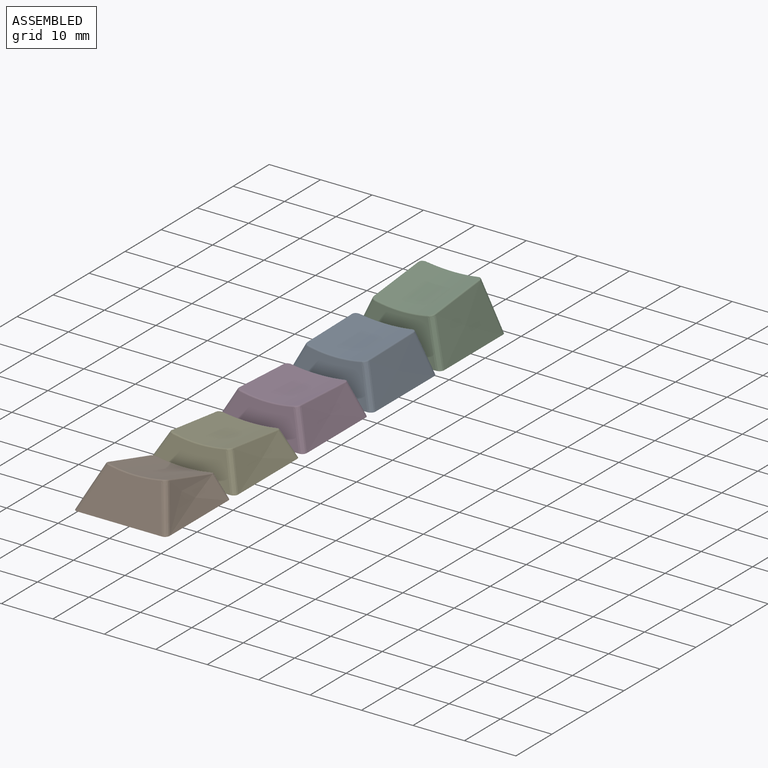
[diagram: assembled view]
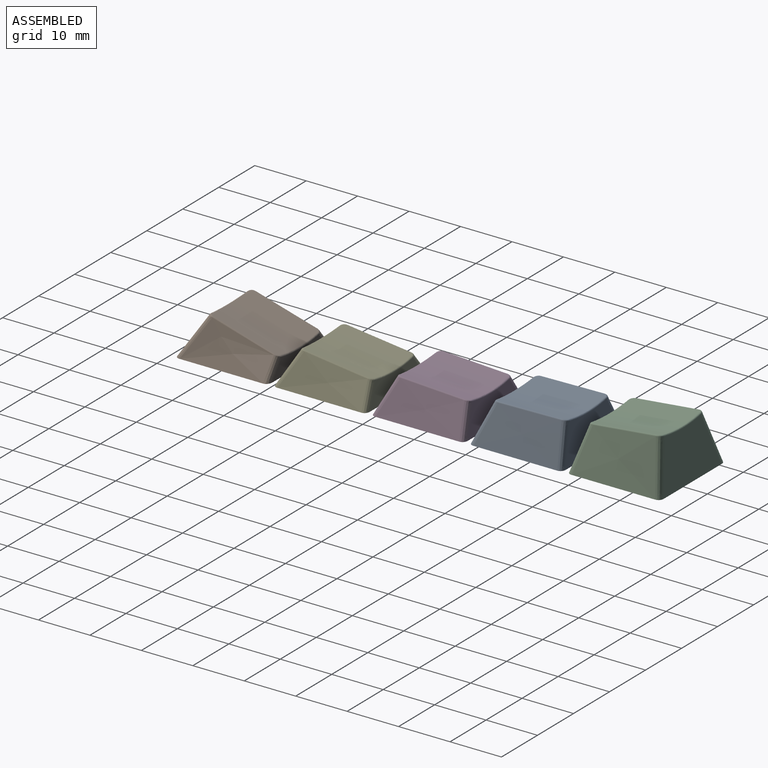
[diagram: assembled view, second angle]
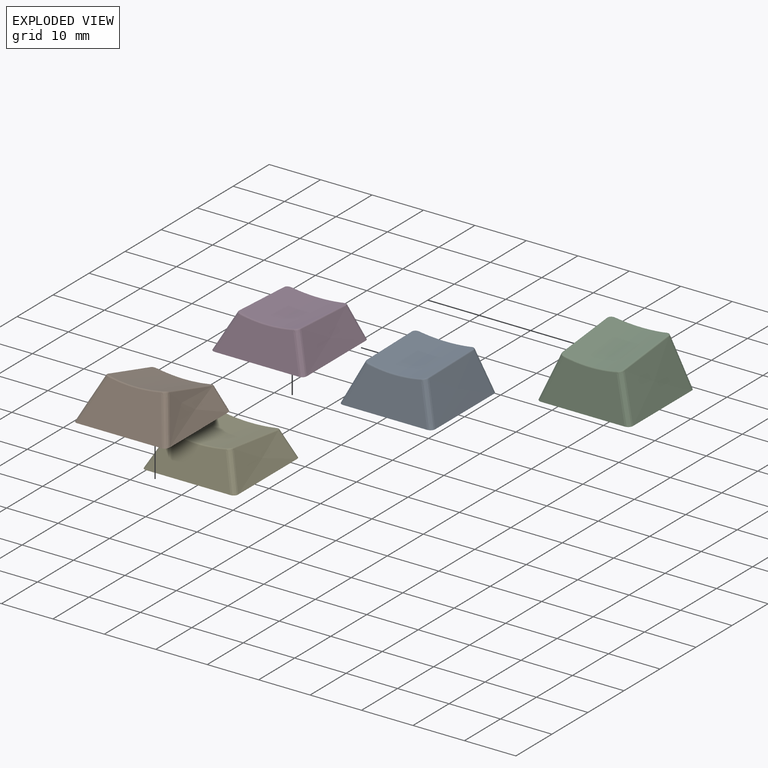
[diagram: exploded view]
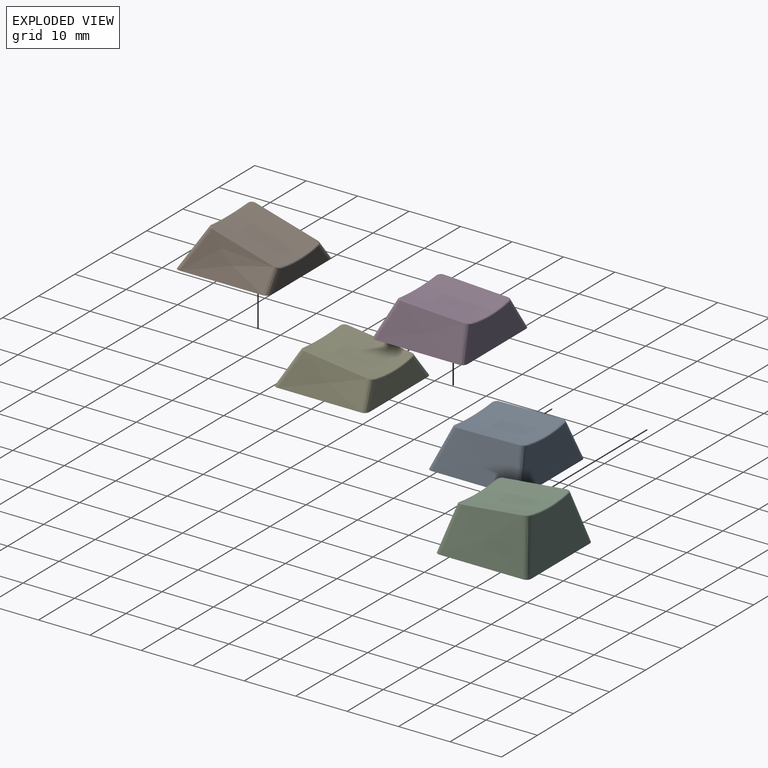
[diagram: exploded view, second angle]
ASSEMBLY  parts=5 mates=3
PART A: 51 faces, bbox 22x21.3x14.2 mm
  f0: plane 6x6mm, normal (0,0,-1), area 19.2mm2, adj f28,f29,f30,f31,f32,f33,f34,f35
  f1: plane 18.44x18.44mm, normal (0,0,-1), area 54.6mm2, adj f2,f3,f4,f5,f7,f8,f9,f10
  f2: plane 16.14x7.16mm, normal (0,0.98,0.17), area 92.8mm2, adj f1,f9,f10,f15
  f3: bspline ~18.16x7.54mm, area 112.1mm2, adj f1,f8,f9,f11
  f4: plane 16.28x6.97mm, normal (0,-0.94,0.35), area 95.6mm2, adj f1,f7,f8,f14
  f5: bspline ~18.16x7.54mm, area 112.1mm2, adj f1,f7,f10,f18
  f6: cylinder r=30mm len=13.86mm, axis (0,1,0.02), area 159.8mm2, adj f11,f12,f13,f14,f15,f16,f17,f18
  f7: bspline ~12.47x6.1mm, area 11.6mm2, adj f1,f4,f5,f16
  f8: bspline ~12.47x6.1mm, area 11.6mm2, adj f1,f3,f4,f12
  f9: bspline ~9.26x4.61mm, area 12mm2, adj f1,f2,f3,f13
  f10: bspline ~9.26x4.61mm, area 12mm2, adj f1,f2,f5,f17
  f11: bspline ~17.96x0.5mm, area 4.2mm2, adj f3,f6,f12,f13
  f12: bspline ~1.12x1.04mm, area 0.4mm2, adj f6,f8,f11,f14
  f13: bspline ~1.21x1.03mm, area 0.5mm2, adj f6,f9,f11,f15
  f14: bspline ~10.34x0.61mm, area 3.1mm2, adj f4,f6,f12,f16
  f15: bspline ~10.21x0.64mm, area 3.6mm2, adj f2,f6,f13,f17
  f16: bspline ~1.22x0.97mm, area 0.4mm2, adj f6,f7,f14,f18
  f17: bspline ~1.2x1.05mm, area 0.5mm2, adj f6,f10,f15,f18
  f18: bspline ~15.87x0.46mm, area 4.2mm2, adj f5,f6,f16,f17
  f19: plane 16.03x6.43mm, normal (0,-0.98,-0.17), area 83.9mm2, adj f1,f26,f27,f48
  f20: offset ~19.66x9.04mm, area 99.4mm2, adj f1,f25,f26,f49
  f21: plane 16.06x6.25mm, normal (0,0.94,-0.35), area 85.7mm2, adj f1,f24,f25,f45
  f22: offset ~19.66x9.04mm, area 99.4mm2, adj f1,f24,f27,f44
  f23: cylinder r=30.75mm len=12.69mm, axis (0,1,0.02), area 96mm2, adj f42,f44,f45,f48,f49
  f24: bspline ~10.42x4.64mm, area 2.6mm2, adj f1,f21,f22,f43
  f25: bspline ~10.42x4.64mm, area 2.6mm2, adj f1,f20,f21,f47
  f26: bspline ~9x3.92mm, area 2.7mm2, adj f1,f19,f20,f50
  f27: bspline ~9x3.92mm, area 2.7mm2, adj f1,f19,f22,f46
  f28: cone r=3mm half-angle=3deg, axis (0,0,1), area 119.6mm2, adj f0,f42
  f29: plane 3.65x1.68mm, normal (-1,0,0), area 6.1mm2, adj f0,f30,f40,f41
  f30: plane 3.65x1.15mm, normal (0,1,0), area 4.2mm2, adj f0,f29,f31,f41
  f31: plane 3.65x1.68mm, normal (1,0,0), area 6.1mm2, adj f0,f30,f32,f41
  f32: plane 3.65x1.68mm, normal (0,1,0), area 6.1mm2, adj f0,f31,f33,f41
  f33: plane 3.65x1.15mm, normal (1,0,0), area 4.2mm2, adj f0,f32,f34,f41
  f34: plane 3.65x1.68mm, normal (0,-1,0), area 6.1mm2, adj f0,f33,f35,f41
  f35: plane 3.65x1.68mm, normal (1,0,0), area 6.1mm2, adj f0,f34,f36,f41
  f36: plane 3.65x1.15mm, normal (0,-1,0), area 4.2mm2, adj f0,f35,f37,f41
  f37: plane 3.65x1.68mm, normal (-1,0,0), area 6.1mm2, adj f0,f36,f38,f41
  f38: plane 3.65x1.68mm, normal (0,-1,0), area 6.1mm2, adj f0,f37,f39,f41
  f39: plane 3.65x1.15mm, normal (-1,0,0), area 4.2mm2, adj f0,f38,f40,f41
  f40: plane 3.65x1.68mm, normal (0,1,0), area 6.1mm2, adj f0,f29,f39,f41
  f41: plane 4.5x4.5mm, normal (0,0,-1), area 9mm2, adj f29,f30,f31,f32,f33,f34,f35,f36
  f42: bspline ~7.12x7.08mm, area 7.8mm2, adj f23,f28
  f43: sphere r=0.25mm, area 0.1mm2, adj f24,f44,f45
  f44: bspline ~16.17x0.46mm, area 4.3mm2, adj f22,f23,f43,f46
  f45: bspline ~10.73x0.63mm, area 3.2mm2, adj f21,f23,f43,f47
  f46: sphere r=0.25mm, area 0.1mm2, adj f27,f44,f48
  f47: sphere r=0.25mm, area 0.1mm2, adj f25,f45,f49
  f48: bspline ~10.71x0.67mm, area 3.8mm2, adj f19,f23,f46,f50
  f49: bspline ~18.27x0.5mm, area 4.3mm2, adj f20,f23,f47,f50
  f50: sphere r=0.25mm, area 0.1mm2, adj f26,f48,f49
PART B: 51 faces, bbox 20.9x22.6x12.5 mm
  f0: plane 6x6mm, normal (0,0,-1), area 19.2mm2, adj f28,f29,f30,f31,f32,f33,f34,f35
  f1: plane 18.48x18.48mm, normal (0,0,-1), area 57.1mm2, adj f2,f3,f4,f5,f7,f8,f9,f10
  f2: plane 15.69x3.41mm, normal (0,1,0.05), area 41.2mm2, adj f1,f9,f10,f15
  f3: bspline ~18.16x7.65mm, area 92.6mm2, adj f1,f8,f9,f11
  f4: plane 16.41x7.33mm, normal (0,-0.87,0.5), area 109.6mm2, adj f1,f7,f8,f14
  f5: bspline ~18.16x7.65mm, area 92.6mm2, adj f1,f7,f10,f18
  f6: cylinder r=30mm len=13.48mm, axis (0,0.96,-0.28), area 160.6mm2, adj f11,f12,f13,f14,f15,f16,f17,f18
  f7: bspline ~9.54x6.23mm, area 12.8mm2, adj f1,f4,f5,f16
  f8: bspline ~10.69x6.9mm, area 12.8mm2, adj f1,f3,f4,f12
  f9: bspline ~6.19x5.16mm, area 6.7mm2, adj f1,f2,f3,f13
  f10: bspline ~6.1x5.09mm, area 6.7mm2, adj f1,f2,f5,f17
  f11: bspline ~18.08x5.25mm, area 4mm2, adj f3,f6,f12,f13
  f12: bspline ~1.17x1.1mm, area 0.4mm2, adj f6,f8,f11,f14
  f13: bspline ~1.06x0.98mm, area 0.3mm2, adj f6,f9,f11,f15
  f14: bspline ~10.25x0.51mm, area 3.4mm2, adj f4,f6,f12,f16
  f15: bspline ~10.4x0.7mm, area 3.2mm2, adj f2,f6,f13,f17
  f16: bspline ~1.26x1.01mm, area 0.4mm2, adj f6,f7,f14,f18
  f17: bspline ~1.2x0.89mm, area 0.3mm2, adj f6,f10,f15,f18
  f18: bspline ~18.06x5.24mm, area 4mm2, adj f5,f6,f16,f17
  f19: plane 15.64x2.89mm, normal (0,-1,-0.05), area 34.8mm2, adj f1,f26,f27,f48
  f20: offset ~19.66x9.15mm, area 78.2mm2, adj f1,f25,f26,f49
  f21: plane 16.1x6.47mm, normal (0,0.87,-0.5), area 96.4mm2, adj f1,f24,f25,f45
  f22: offset ~19.66x9.15mm, area 78.2mm2, adj f1,f24,f27,f44
  f23: cylinder r=30.75mm len=12.36mm, axis (0,0.96,-0.28), area 98.4mm2, adj f42,f44,f45,f48,f49
  f24: bspline ~9.26x5.5mm, area 2.8mm2, adj f1,f21,f22,f43
  f25: bspline ~10.41x6.16mm, area 2.8mm2, adj f1,f20,f21,f47
  f26: bspline ~4.41x3.51mm, area 1.4mm2, adj f1,f19,f20,f50
  f27: bspline ~4.34x3.46mm, area 1.4mm2, adj f1,f19,f22,f46
  f28: cone r=3mm half-angle=3deg, axis (0,0,1), area 93.6mm2, adj f0,f42
  f29: plane 3.65x1.68mm, normal (-1,0,0), area 6.1mm2, adj f0,f30,f40,f41
  f30: plane 3.65x1.15mm, normal (0,1,0), area 4.2mm2, adj f0,f29,f31,f41
  f31: plane 3.65x1.68mm, normal (1,0,0), area 6.1mm2, adj f0,f30,f32,f41
  f32: plane 3.65x1.68mm, normal (0,1,0), area 6.1mm2, adj f0,f31,f33,f41
  f33: plane 3.65x1.15mm, normal (1,0,0), area 4.2mm2, adj f0,f32,f34,f41
  f34: plane 3.65x1.68mm, normal (0,-1,0), area 6.1mm2, adj f0,f33,f35,f41
  f35: plane 3.65x1.68mm, normal (1,0,0), area 6.1mm2, adj f0,f34,f36,f41
  f36: plane 3.65x1.15mm, normal (0,-1,0), area 4.2mm2, adj f0,f35,f37,f41
  f37: plane 3.65x1.68mm, normal (-1,0,0), area 6.1mm2, adj f0,f36,f38,f41
  f38: plane 3.65x1.68mm, normal (0,-1,0), area 6.1mm2, adj f0,f37,f39,f41
  f39: plane 3.65x1.15mm, normal (-1,0,0), area 4.2mm2, adj f0,f38,f40,f41
  f40: plane 3.65x1.68mm, normal (0,1,0), area 6.1mm2, adj f0,f29,f39,f41
  f41: plane 4.5x4.5mm, normal (0,0,-1), area 9mm2, adj f29,f30,f31,f32,f33,f34,f35,f36
  f42: bspline ~7x6.96mm, area 7.8mm2, adj f23,f28
  f43: sphere r=0.25mm, area 0.1mm2, adj f24,f44,f45
  f44: bspline ~18.46x5.3mm, area 4mm2, adj f22,f23,f43,f46
  f45: bspline ~10.66x0.53mm, area 3.5mm2, adj f21,f23,f43,f47
  f46: sphere r=0.25mm, area 0.1mm2, adj f27,f44,f48
  f47: sphere r=0.25mm, area 0.1mm2, adj f25,f45,f49
  f48: bspline ~11.14x0.76mm, area 3.5mm2, adj f19,f23,f46,f50
  f49: bspline ~18.56x5.33mm, area 4mm2, adj f20,f23,f47,f50
  f50: sphere r=0.25mm, area 0.1mm2, adj f26,f48,f49
PART C: 51 faces, bbox 21.2x21x14.3 mm
  f0: plane 6x6mm, normal (0,0,-1), area 19.2mm2, adj f28,f29,f30,f31,f32,f33,f34,f35
  f1: plane 18.39x18.39mm, normal (0,0,-1), area 53.6mm2, adj f2,f3,f4,f5,f7,f8,f9,f10
  f2: plane 16.19x9.35mm, normal (0,0.98,0.2), area 122.9mm2, adj f1,f9,f10,f15
  f3: bspline ~18.16x9.74mm, area 132.5mm2, adj f1,f8,f9,f11
  f4: plane 16.21x7.93mm, normal (0,-0.97,0.24), area 105.1mm2, adj f1,f7,f8,f14
  f5: bspline ~18.16x9.74mm, area 132.5mm2, adj f1,f7,f10,f18
  f6: cylinder r=30mm len=13.8mm, axis (0,0.99,0.1), area 159.1mm2, adj f11,f12,f13,f14,f15,f16,f17,f18
  f7: bspline ~12.65x5.54mm, area 12.9mm2, adj f1,f4,f5,f16
  f8: bspline ~12.64x5.53mm, area 12.9mm2, adj f1,f3,f4,f12
  f9: bspline ~11.7x4.63mm, area 15.3mm2, adj f1,f2,f3,f13
  f10: bspline ~11.71x4.64mm, area 15.3mm2, adj f1,f2,f5,f17
  f11: bspline ~19.21x2.21mm, area 4.4mm2, adj f3,f6,f12,f13
  f12: bspline ~1.13x1.03mm, area 0.4mm2, adj f6,f8,f11,f14
  f13: bspline ~1.25x1.05mm, area 0.5mm2, adj f6,f9,f11,f15
  f14: bspline ~10.31x0.64mm, area 3.2mm2, adj f4,f6,f12,f16
  f15: bspline ~10.16x0.62mm, area 3.7mm2, adj f2,f6,f13,f17
  f16: bspline ~1.21x0.98mm, area 0.4mm2, adj f6,f7,f14,f18
  f17: bspline ~1.22x1.09mm, area 0.5mm2, adj f6,f10,f15,f18
  f18: bspline ~19.21x2.21mm, area 4.4mm2, adj f5,f6,f16,f17
  f19: plane 16.09x8.56mm, normal (0,-0.98,-0.2), area 113.4mm2, adj f1,f26,f27,f48
  f20: offset ~19.66x11.24mm, area 120.3mm2, adj f1,f25,f26,f49
  f21: plane 16.07x7.26mm, normal (0,0.97,-0.24), area 96.5mm2, adj f1,f24,f25,f45
  f22: offset ~19.66x11.24mm, area 120.3mm2, adj f1,f24,f27,f44
  f23: cylinder r=30.75mm len=12.59mm, axis (0,0.99,0.1), area 91.8mm2, adj f42,f44,f45,f48,f49
  f24: bspline ~12.44x4.84mm, area 2.9mm2, adj f1,f21,f22,f43
  f25: bspline ~12.43x4.83mm, area 2.9mm2, adj f1,f20,f21,f47
  f26: bspline ~11.49x3.92mm, area 3.5mm2, adj f1,f19,f20,f50
  f27: bspline ~11.5x3.92mm, area 3.5mm2, adj f1,f19,f22,f46
  f28: cone r=3mm half-angle=3deg, axis (0,0,1), area 151.1mm2, adj f0,f42
  f29: plane 3.65x1.68mm, normal (-1,0,0), area 6.1mm2, adj f0,f30,f40,f41
  f30: plane 3.65x1.15mm, normal (0,1,0), area 4.2mm2, adj f0,f29,f31,f41
  f31: plane 3.65x1.68mm, normal (1,0,0), area 6.1mm2, adj f0,f30,f32,f41
  f32: plane 3.65x1.68mm, normal (0,1,0), area 6.1mm2, adj f0,f31,f33,f41
  f33: plane 3.65x1.15mm, normal (1,0,0), area 4.2mm2, adj f0,f32,f34,f41
  f34: plane 3.65x1.68mm, normal (0,-1,0), area 6.1mm2, adj f0,f33,f35,f41
  f35: plane 3.65x1.68mm, normal (1,0,0), area 6.1mm2, adj f0,f34,f36,f41
  f36: plane 3.65x1.15mm, normal (0,-1,0), area 4.2mm2, adj f0,f35,f37,f41
  f37: plane 3.65x1.68mm, normal (-1,0,0), area 6.1mm2, adj f0,f36,f38,f41
  f38: plane 3.65x1.68mm, normal (0,-1,0), area 6.1mm2, adj f0,f37,f39,f41
  f39: plane 3.65x1.15mm, normal (-1,0,0), area 4.2mm2, adj f0,f38,f40,f41
  f40: plane 3.65x1.68mm, normal (0,1,0), area 6.1mm2, adj f0,f29,f39,f41
  f41: plane 4.5x4.5mm, normal (0,0,-1), area 9mm2, adj f29,f30,f31,f32,f33,f34,f35,f36
  f42: bspline ~7.29x7.25mm, area 8mm2, adj f23,f28
  f43: sphere r=0.25mm, area 0.1mm2, adj f24,f44,f45
  f44: bspline ~19.52x2.22mm, area 4.4mm2, adj f22,f23,f43,f46
  f45: bspline ~10.67x0.66mm, area 3.3mm2, adj f21,f23,f43,f47
  f46: sphere r=0.25mm, area 0.1mm2, adj f27,f44,f48
  f47: sphere r=0.25mm, area 0.1mm2, adj f25,f45,f49
  f48: bspline ~10.57x0.64mm, area 3.9mm2, adj f19,f23,f46,f50
  f49: bspline ~16.91x1.96mm, area 4.4mm2, adj f20,f23,f47,f50
  f50: sphere r=0.25mm, area 0.1mm2, adj f26,f48,f49
PART D: 51 faces, bbox 21.2x20.8x11 mm
  f0: plane 6x6mm, normal (0,0,-1), area 19.2mm2, adj f28,f29,f30,f31,f32,f33,f34,f35
  f1: plane 18.46x18.46mm, normal (0,0,-1), area 55.8mm2, adj f2,f3,f4,f5,f7,f8,f9,f10
  f2: plane 16.11x5.54mm, normal (0,0.98,0.2), area 71.5mm2, adj f1,f9,f10,f15
  f3: bspline ~18.16x6.63mm, area 97.8mm2, adj f1,f8,f9,f11
  f4: plane 16.32x6.32mm, normal (0,-0.92,0.39), area 88.3mm2, adj f1,f7,f8,f14
  f5: bspline ~18.16x6.63mm, area 97.8mm2, adj f1,f7,f10,f18
  f6: cylinder r=30mm len=13.89mm, axis (0,1,-0.05), area 160.5mm2, adj f11,f12,f13,f14,f15,f16,f17,f18
  f7: bspline ~8.91x4.97mm, area 10.7mm2, adj f1,f4,f5,f16
  f8: bspline ~8.91x4.97mm, area 10.7mm2, adj f1,f3,f4,f12
  f9: bspline ~9.28x5.54mm, area 9.5mm2, adj f1,f2,f3,f13
  f10: bspline ~9.28x5.54mm, area 9.5mm2, adj f1,f2,f5,f17
  f11: bspline ~17.66x1.09mm, area 4.1mm2, adj f3,f6,f12,f13
  f12: bspline ~1.13x1.04mm, area 0.4mm2, adj f6,f8,f11,f14
  f13: bspline ~1.19x1mm, area 0.4mm2, adj f6,f9,f11,f15
  f14: bspline ~10.35x0.58mm, area 3.2mm2, adj f4,f6,f12,f16
  f15: bspline ~10.31x0.64mm, area 3.4mm2, adj f2,f6,f13,f17
  f16: bspline ~1.22x0.97mm, area 0.4mm2, adj f6,f7,f14,f18
  f17: bspline ~1.17x1.01mm, area 0.4mm2, adj f6,f10,f15,f18
  f18: bspline ~17.66x1.09mm, area 4.1mm2, adj f5,f6,f16,f17
  f19: plane 15.95x4.86mm, normal (0,-0.98,-0.2), area 62.8mm2, adj f1,f26,f27,f48
  f20: offset ~19.66x8.13mm, area 84.7mm2, adj f1,f25,f26,f49
  f21: plane 16.04x5.56mm, normal (0,0.92,-0.39), area 77.6mm2, adj f1,f24,f25,f45
  f22: offset ~19.66x8.13mm, area 84.7mm2, adj f1,f24,f27,f44
  f23: cylinder r=30.75mm len=12.76mm, axis (0,1,-0.05), area 99.2mm2, adj f42,f44,f45,f48,f49
  f24: bspline ~7.84x3.89mm, area 2.3mm2, adj f1,f21,f22,f43
  f25: bspline ~7.84x3.9mm, area 2.3mm2, adj f1,f20,f21,f47
  f26: bspline ~5.97x3.3mm, area 2.1mm2, adj f1,f19,f20,f50
  f27: bspline ~5.97x3.3mm, area 2.1mm2, adj f1,f19,f22,f46
  f28: cone r=3mm half-angle=3deg, axis (0,0,1), area 95.8mm2, adj f0,f42
  f29: plane 3.65x1.68mm, normal (-1,0,0), area 6.1mm2, adj f0,f30,f40,f41
  f30: plane 3.65x1.15mm, normal (0,1,0), area 4.2mm2, adj f0,f29,f31,f41
  f31: plane 3.65x1.68mm, normal (1,0,0), area 6.1mm2, adj f0,f30,f32,f41
  f32: plane 3.65x1.68mm, normal (0,1,0), area 6.1mm2, adj f0,f31,f33,f41
  f33: plane 3.65x1.15mm, normal (1,0,0), area 4.2mm2, adj f0,f32,f34,f41
  f34: plane 3.65x1.68mm, normal (0,-1,0), area 6.1mm2, adj f0,f33,f35,f41
  f35: plane 3.65x1.68mm, normal (1,0,0), area 6.1mm2, adj f0,f34,f36,f41
  f36: plane 3.65x1.15mm, normal (0,-1,0), area 4.2mm2, adj f0,f35,f37,f41
  f37: plane 3.65x1.68mm, normal (-1,0,0), area 6.1mm2, adj f0,f36,f38,f41
  f38: plane 3.65x1.68mm, normal (0,-1,0), area 6.1mm2, adj f0,f37,f39,f41
  f39: plane 3.65x1.15mm, normal (-1,0,0), area 4.2mm2, adj f0,f38,f40,f41
  f40: plane 3.65x1.68mm, normal (0,1,0), area 6.1mm2, adj f0,f29,f39,f41
  f41: plane 4.5x4.5mm, normal (0,0,-1), area 9mm2, adj f29,f30,f31,f32,f33,f34,f35,f36
  f42: bspline ~7x6.96mm, area 7.7mm2, adj f23,f28
  f43: sphere r=0.25mm, area 0.1mm2, adj f24,f44,f45
  f44: bspline ~18x1.09mm, area 4.1mm2, adj f22,f23,f43,f46
  f45: bspline ~10.78x0.61mm, area 3.3mm2, adj f21,f23,f43,f47
  f46: sphere r=0.25mm, area 0.1mm2, adj f27,f44,f48
  f47: sphere r=0.25mm, area 0.1mm2, adj f25,f45,f49
  f48: bspline ~10.86x0.68mm, area 3.6mm2, adj f19,f23,f46,f50
  f49: bspline ~18x1.09mm, area 4.1mm2, adj f20,f23,f47,f50
  f50: sphere r=0.25mm, area 0.1mm2, adj f26,f48,f49
PART E: 51 faces, bbox 20.8x21.1x10.4 mm
  f0: plane 6x6mm, normal (0,0,-1), area 19.2mm2, adj f28,f29,f30,f31,f32,f33,f34,f35
  f1: plane 18.48x18.48mm, normal (0,0,-1), area 57.1mm2, adj f2,f3,f4,f5,f7,f8,f9,f10
  f2: plane 16.03x4.26mm, normal (0,0.98,0.2), area 54.1mm2, adj f1,f9,f10,f15
  f3: bspline ~18.16x6.31mm, area 88.4mm2, adj f1,f8,f9,f11
  f4: plane 16.37x6.01mm, normal (0,-0.89,0.45), area 86.6mm2, adj f1,f7,f8,f14
  f5: bspline ~18.16x6.31mm, area 88.4mm2, adj f1,f7,f10,f18
  f6: cylinder r=30mm len=13.86mm, axis (0,0.99,-0.12), area 161.1mm2, adj f11,f12,f13,f14,f15,f16,f17,f18
  f7: bspline ~8.56x5.09mm, area 10.3mm2, adj f1,f4,f5,f16
  f8: bspline ~8.59x5.11mm, area 10.3mm2, adj f1,f3,f4,f12
  f9: bspline ~6.48x4.84mm, area 7.6mm2, adj f1,f2,f3,f13
  f10: bspline ~6.46x4.82mm, area 7.6mm2, adj f1,f2,f5,f17
  f11: bspline ~15.62x2.04mm, area 3.9mm2, adj f3,f6,f12,f13
  f12: bspline ~1.13x1.06mm, area 0.4mm2, adj f6,f8,f11,f14
  f13: bspline ~1.14x0.96mm, area 0.4mm2, adj f6,f9,f11,f15
  f14: bspline ~10.35x0.56mm, area 3.2mm2, adj f4,f6,f12,f16
  f15: bspline ~10.39x0.66mm, area 3.2mm2, adj f2,f6,f13,f17
  f16: bspline ~1.23x0.97mm, area 0.4mm2, adj f6,f7,f14,f18
  f17: bspline ~1.14x0.96mm, area 0.4mm2, adj f6,f10,f15,f18
  f18: bspline ~17.54x2.28mm, area 3.9mm2, adj f5,f6,f16,f17
  f19: plane 15.83x3.63mm, normal (0,-0.98,-0.2), area 45.8mm2, adj f1,f26,f27,f48
  f20: offset ~19.66x7.81mm, area 74.6mm2, adj f1,f25,f26,f49
  f21: plane 16.04x5.23mm, normal (0,0.89,-0.45), area 74.9mm2, adj f1,f24,f25,f45
  f22: offset ~19.66x7.81mm, area 74.6mm2, adj f1,f24,f27,f44
  f23: cylinder r=30.75mm len=12.77mm, axis (0,0.99,-0.12), area 101.6mm2, adj f42,f44,f45,f48,f49
  f24: bspline ~7.52x3.97mm, area 2.2mm2, adj f1,f21,f22,f43
  f25: bspline ~7.55x3.99mm, area 2.2mm2, adj f1,f20,f21,f47
  f26: bspline ~4.82x3.32mm, area 1.6mm2, adj f1,f19,f20,f50
  f27: bspline ~4.8x3.31mm, area 1.6mm2, adj f1,f19,f22,f46
  f28: cone r=3mm half-angle=3deg, axis (0,0,1), area 80.2mm2, adj f0,f42
  f29: plane 3.65x1.68mm, normal (-1,0,0), area 6.1mm2, adj f0,f30,f40,f41
  f30: plane 3.65x1.15mm, normal (0,1,0), area 4.2mm2, adj f0,f29,f31,f41
  f31: plane 3.65x1.68mm, normal (1,0,0), area 6.1mm2, adj f0,f30,f32,f41
  f32: plane 3.65x1.68mm, normal (0,1,0), area 6.1mm2, adj f0,f31,f33,f41
  f33: plane 3.65x1.15mm, normal (1,0,0), area 4.2mm2, adj f0,f32,f34,f41
  f34: plane 3.65x1.68mm, normal (0,-1,0), area 6.1mm2, adj f0,f33,f35,f41
  f35: plane 3.65x1.68mm, normal (1,0,0), area 6.1mm2, adj f0,f34,f36,f41
  f36: plane 3.65x1.15mm, normal (0,-1,0), area 4.2mm2, adj f0,f35,f37,f41
  f37: plane 3.65x1.68mm, normal (-1,0,0), area 6.1mm2, adj f0,f36,f38,f41
  f38: plane 3.65x1.68mm, normal (0,-1,0), area 6.1mm2, adj f0,f37,f39,f41
  f39: plane 3.65x1.15mm, normal (-1,0,0), area 4.2mm2, adj f0,f38,f40,f41
  f40: plane 3.65x1.68mm, normal (0,1,0), area 6.1mm2, adj f0,f29,f39,f41
  f41: plane 4.5x4.5mm, normal (0,0,-1), area 9mm2, adj f29,f30,f31,f32,f33,f34,f35,f36
  f42: bspline ~6.93x6.89mm, area 7.6mm2, adj f23,f28
  f43: sphere r=0.25mm, area 0.1mm2, adj f24,f44,f45
  f44: bspline ~17.91x2.3mm, area 3.9mm2, adj f22,f23,f43,f46
  f45: bspline ~10.8x0.58mm, area 3.3mm2, adj f21,f23,f43,f47
  f46: sphere r=0.25mm, area 0.1mm2, adj f27,f44,f48
  f47: sphere r=0.25mm, area 0.1mm2, adj f25,f45,f49
  f48: bspline ~11.02x0.7mm, area 3.4mm2, adj f19,f23,f46,f50
  f49: bspline ~17.93x2.3mm, area 3.9mm2, adj f20,f23,f47,f50
  f50: sphere r=0.25mm, area 0.1mm2, adj f26,f48,f49
PLACE A t=(0,19.05,0)mm
PLACE B t=(0,-38.1,0)mm
PLACE C t=(0,38.1,0)mm
PLACE D at identity
PLACE E t=(0,-19.05,0)mm
MATE fastened D.f28 <-> E.f1  axis (0,0,-1) through (0,0,0)mm
MATE fastened A.f28 <-> C.f1  axis (0,0,-1) through (0,19.05,0)mm
MATE fastened E.f28 <-> B.f1  axis (0,0,-1) through (0,-19.05,0)mm
